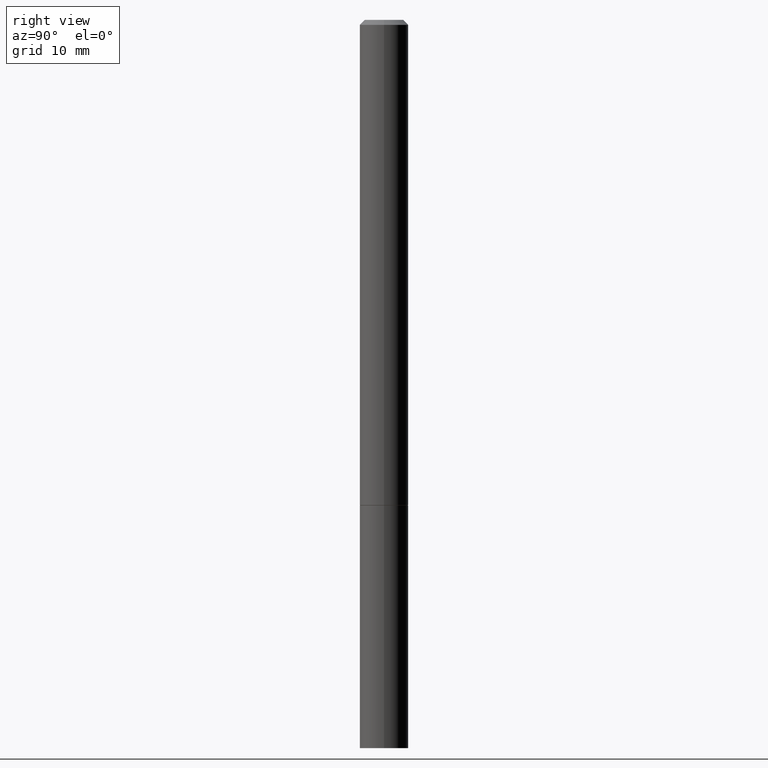
[diagram: clean part render]
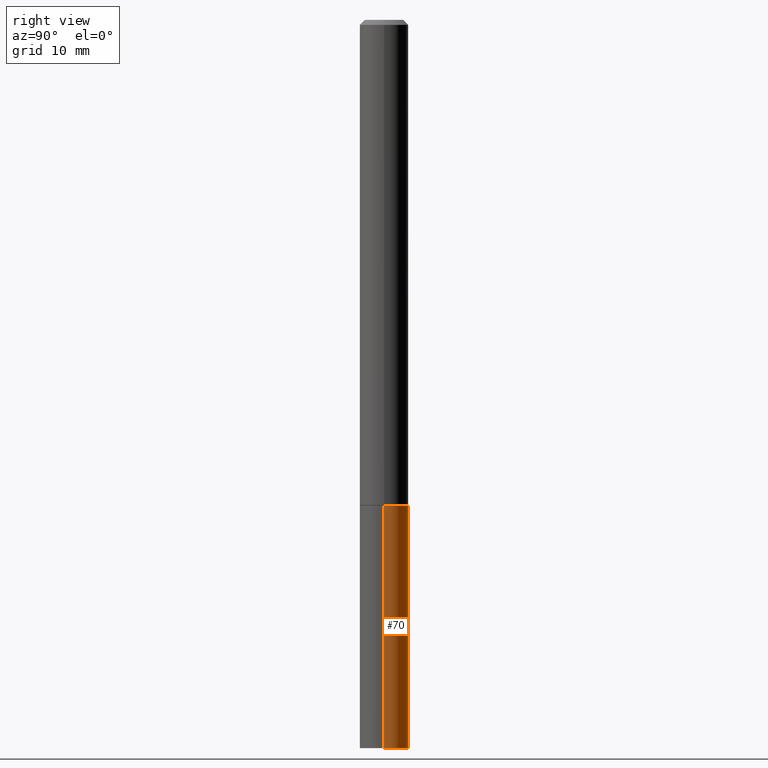
[diagram: same view with one face highlighted and labeled with its STEP entity id]
A machine part, right view. The second image highlights one B-rep face of the part: STEP entity #70.
In plain terms, the highlighted cylindrical surface (edge-blend (fillet) strip) has radius 2.5006 mm, axis along (-0, 0, 1).
Its self-contained STEP definition (entity closure, byte-faithful):
#5 = VERTEX_POINT ( 'NONE', #270 ) ;
#14 = DIRECTION ( 'NONE',  ( 1.000000000000000000, -6.982962677686274599E-15, 0.000000000000000000 ) ) ;
#22 = VECTOR ( 'NONE', #98, 39.37007874015748143 ) ;
#31 = EDGE_CURVE ( 'NONE', #151, #265, #133, .T. ) ;
#34 = EDGE_CURVE ( 'NONE', #151, #5, #50, .T. ) ;
#35 = DIRECTION ( 'NONE',  ( -2.445468806185136597E-29, 3.491481338843145583E-15, 1.000000000000000000 ) ) ;
#50 = CIRCLE ( 'NONE', #263, 0.09844999999999999585 ) ;
#57 = DIRECTION ( 'NONE',  ( 1.000000000000000000, -6.982962677686266711E-15, 4.876176775795936353E-29 ) ) ;
#70 = ADVANCED_FACE ( 'NONE', ( #232 ), #333, .T. ) ;
#72 = ORIENTED_EDGE ( 'NONE', *, *, #282, .T. ) ;
#82 = CARTESIAN_POINT ( 'NONE',  ( 4.813905344975440714E-29, -6.872981015512730918E-15, -1.968499999999999694 ) ) ;
#98 = DIRECTION ( 'NONE',  ( -2.445468806185136877E-29, 3.491481338843145188E-15, 1.000000000000000000 ) ) ;
#125 = EDGE_LOOP ( 'NONE', ( #294, #72, #308, #212 ) ) ;
#133 = LINE ( 'NONE', #299, #22 ) ;
#139 = EDGE_CURVE ( 'NONE', #265, #316, #321, .T. ) ;
#151 = VERTEX_POINT ( 'NONE', #215 ) ;
#164 = DIRECTION ( 'NONE',  ( -2.445468806185136597E-29, 3.491481338843145583E-15, 1.000000000000000000 ) ) ;
#169 = DIRECTION ( 'NONE',  ( -2.445468806185136877E-29, 3.491481338843145188E-15, 1.000000000000000000 ) ) ;
#202 = LINE ( 'NONE', #305, #220 ) ;
#212 = ORIENTED_EDGE ( 'NONE', *, *, #31, .F. ) ;
#214 = DIRECTION ( 'NONE',  ( 1.000000000000000000, -6.982962677686265922E-15, 0.000000000000000000 ) ) ;
#215 = CARTESIAN_POINT ( 'NONE',  ( 0.09844999999999999585, -1.099711877295425267E-14, -2.952799999999999869 ) ) ;
#216 = CARTESIAN_POINT ( 'NONE',  ( 7.220980290903470182E-29, -1.030964609733603853E-14, -2.952799999999999869 ) ) ;
#220 = VECTOR ( 'NONE', #169, 39.37007874015748143 ) ;
#228 = AXIS2_PLACEMENT_3D ( 'NONE', #262, #310, #57 ) ;
#232 = FACE_OUTER_BOUND ( 'NONE', #125, .T. ) ;
#262 = CARTESIAN_POINT ( 'NONE',  ( 0.000000000000000000, 0.000000000000000000, 0.000000000000000000 ) ) ;
#263 = AXIS2_PLACEMENT_3D ( 'NONE', #216, #35, #14 ) ;
#265 = VERTEX_POINT ( 'NONE', #309 ) ;
#270 = CARTESIAN_POINT ( 'NONE',  ( -0.09844999999999999585, -7.891784233068567007E-15, -2.952799999999999869 ) ) ;
#282 = EDGE_CURVE ( 'NONE', #5, #316, #202, .T. ) ;
#294 = ORIENTED_EDGE ( 'NONE', *, *, #34, .T. ) ;
#299 = CARTESIAN_POINT ( 'NONE',  ( 0.09844999999999999585, -6.874726756182129545E-16, 4.800596035771099214E-30 ) ) ;
#305 = CARTESIAN_POINT ( 'NONE',  ( -0.09844999999999999585, 6.995293233558186035E-16, -4.842691596355954042E-30 ) ) ;
#308 = ORIENTED_EDGE ( 'NONE', *, *, #139, .F. ) ;
#309 = CARTESIAN_POINT ( 'NONE',  ( 0.09844999999999999585, -7.560453691130944267E-15, -1.968499999999999694 ) ) ;
#310 = DIRECTION ( 'NONE',  ( -2.445468806185136597E-29, 3.491481338843145583E-15, 1.000000000000000000 ) ) ;
#316 = VERTEX_POINT ( 'NONE', #326 ) ;
#321 = CIRCLE ( 'NONE', #332, 0.09844999999999999585 ) ;
#326 = CARTESIAN_POINT ( 'NONE',  ( -0.09844999999999999585, -7.891784233068567007E-15, -1.968499999999999694 ) ) ;
#332 = AXIS2_PLACEMENT_3D ( 'NONE', #82, #164, #214 ) ;
#333 = CYLINDRICAL_SURFACE ( 'NONE', #228, 0.09844999999999999585 ) ;